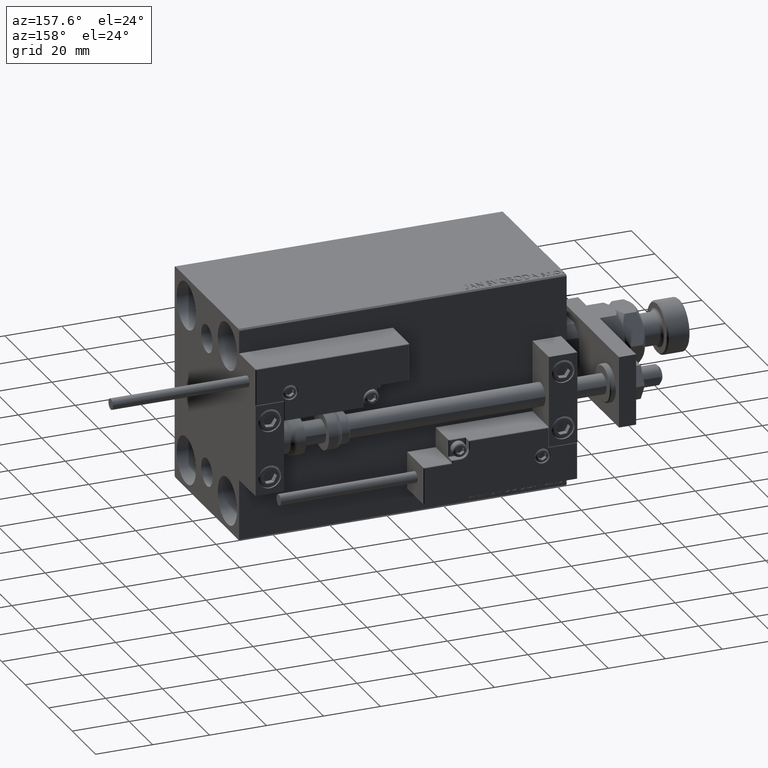
[diagram: clean part render]
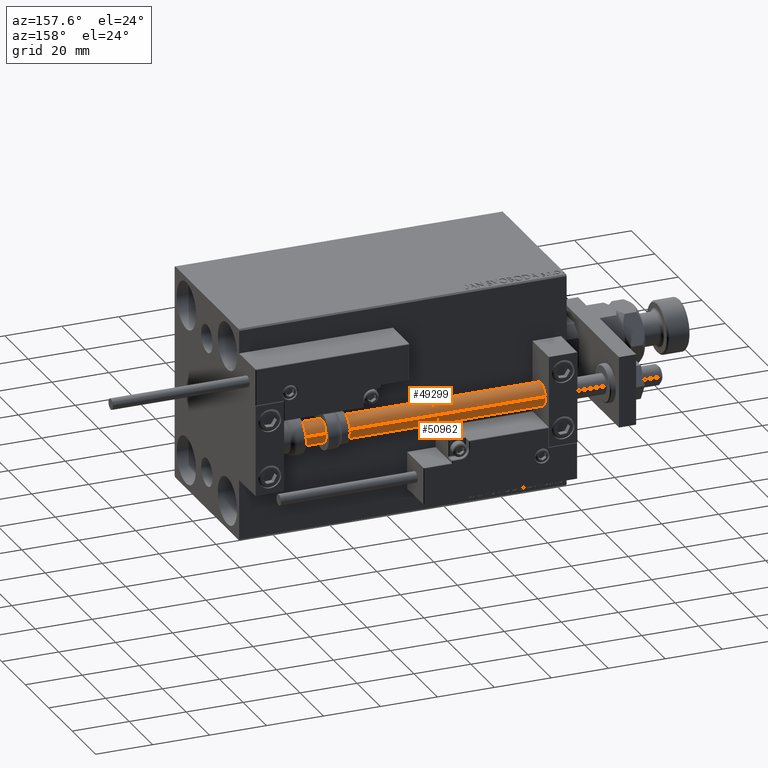
[diagram: same view with one multi-face feature highlighted, each face labeled with its STEP entity id]
A machine part, auxiliary view. The highlighted faces form ONE feature: a constant-radius fillet chain: 2 tangent blend faces with common blend radius 4 mm. The faces share edges in the B-rep.
Their STEP definitions:
[1] entity #49299 (Cylinder):
#466 = VERTEX_POINT ( 'NONE', #50105 ) ;
#532 = CARTESIAN_POINT ( 'NONE',  ( 4.000000000000000000, 4.898587196589412829E-16, 115.0000000000000000 ) ) ;
#597 = DIRECTION ( 'NONE',  ( 1.000000000000000000, 0.000000000000000000, 0.000000000000000000 ) ) ;
#1025 = CARTESIAN_POINT ( 'NONE',  ( 0.000000000000000000, 0.000000000000000000, 2.000000000000029310 ) ) ;
#1105 = ORIENTED_EDGE ( 'NONE', *, *, #41262, .T. ) ;
#4342 = LINE ( 'NONE', #32978, #35490 ) ;
#4816 = AXIS2_PLACEMENT_3D ( 'NONE', #10010, #10266, #34232 ) ;
#6224 = VECTOR ( 'NONE', #32700, 1000.000000000000000 ) ;
#8113 = EDGE_CURVE ( 'NONE', #18830, #466, #17327, .T. ) ;
#8159 = CARTESIAN_POINT ( 'NONE',  ( 0.000000000000000000, 0.000000000000000000, 115.0000000000000000 ) ) ;
#10010 = CARTESIAN_POINT ( 'NONE',  ( 0.000000000000000000, 0.000000000000000000, 115.0000000000000000 ) ) ;
#10266 = DIRECTION ( 'NONE',  ( -0.000000000000000000, -0.000000000000000000, -1.000000000000000000 ) ) ;
#10830 = DIRECTION ( 'NONE',  ( 0.000000000000000000, 0.000000000000000000, 1.000000000000000000 ) ) ;
#12235 = EDGE_CURVE ( 'NONE', #28623, #466, #25543, .T. ) ;
#17327 = LINE ( 'NONE', #45719, #6224 ) ;
#18830 = VERTEX_POINT ( 'NONE', #25990 ) ;
#20001 = DIRECTION ( 'NONE',  ( -0.000000000000000000, -0.000000000000000000, -1.000000000000000000 ) ) ;
#20874 = ORIENTED_EDGE ( 'NONE', *, *, #8113, .F. ) ;
#20936 = ORIENTED_EDGE ( 'NONE', *, *, #48259, .F. ) ;
#21354 = DIRECTION ( 'NONE',  ( -0.000000000000000000, -0.000000000000000000, 1.000000000000000000 ) ) ;
#23054 = AXIS2_PLACEMENT_3D ( 'NONE', #1025, #21354, #48473 ) ;
#23914 = CIRCLE ( 'NONE', #47246, 4.000000000000000000 ) ;
#25543 = CIRCLE ( 'NONE', #23054, 4.000000000000000000 ) ;
#25853 = EDGE_LOOP ( 'NONE', ( #20936, #1105, #29746, #20874 ) ) ;
#25990 = CARTESIAN_POINT ( 'NONE',  ( -4.000000000000000000, 0.000000000000000000, 115.0000000000000000 ) ) ;
#28623 = VERTEX_POINT ( 'NONE', #50041 ) ;
#29746 = ORIENTED_EDGE ( 'NONE', *, *, #12235, .T. ) ;
#32700 = DIRECTION ( 'NONE',  ( -0.000000000000000000, -0.000000000000000000, -1.000000000000000000 ) ) ;
#32978 = CARTESIAN_POINT ( 'NONE',  ( 4.000000000000000000, 4.898587196589412829E-16, 115.0000000000000000 ) ) ;
#34232 = DIRECTION ( 'NONE',  ( -1.000000000000000000, 0.000000000000000000, 0.000000000000000000 ) ) ;
#35490 = VECTOR ( 'NONE', #20001, 1000.000000000000000 ) ;
#41262 = EDGE_CURVE ( 'NONE', #48558, #28623, #4342, .T. ) ;
#41808 = CYLINDRICAL_SURFACE ( 'NONE', #4816, 4.000000000000000000 ) ;
#45719 = CARTESIAN_POINT ( 'NONE',  ( -4.000000000000000000, 0.000000000000000000, 115.0000000000000000 ) ) ;
#47246 = AXIS2_PLACEMENT_3D ( 'NONE', #8159, #10830, #597 ) ;
#48259 = EDGE_CURVE ( 'NONE', #48558, #18830, #23914, .T. ) ;
#48473 = DIRECTION ( 'NONE',  ( 1.000000000000000000, 0.000000000000000000, 0.000000000000000000 ) ) ;
#48558 = VERTEX_POINT ( 'NONE', #532 ) ;
#49299 = ADVANCED_FACE ( 'NONE', ( #49903 ), #41808, .T. ) ;
#49903 = FACE_OUTER_BOUND ( 'NONE', #25853, .T. ) ;
#50041 = CARTESIAN_POINT ( 'NONE',  ( 4.000000000000000000, 4.898587196589412829E-16, 2.000000000000029310 ) ) ;
#50105 = CARTESIAN_POINT ( 'NONE',  ( -4.000000000000000000, 0.000000000000000000, 2.000000000000029310 ) ) ;
[2] entity #50962 (Cylinder):
#466 = VERTEX_POINT ( 'NONE', #50105 ) ;
#532 = CARTESIAN_POINT ( 'NONE',  ( 4.000000000000000000, 4.898587196589412829E-16, 115.0000000000000000 ) ) ;
#3261 = FACE_OUTER_BOUND ( 'NONE', #33734, .T. ) ;
#4342 = LINE ( 'NONE', #32978, #35490 ) ;
#6224 = VECTOR ( 'NONE', #32700, 1000.000000000000000 ) ;
#8113 = EDGE_CURVE ( 'NONE', #18830, #466, #17327, .T. ) ;
#17327 = LINE ( 'NONE', #45719, #6224 ) ;
#18830 = VERTEX_POINT ( 'NONE', #25990 ) ;
#19159 = DIRECTION ( 'NONE',  ( -0.000000000000000000, -0.000000000000000000, -1.000000000000000000 ) ) ;
#19753 = AXIS2_PLACEMENT_3D ( 'NONE', #34139, #25572, #33375 ) ;
#20001 = DIRECTION ( 'NONE',  ( -0.000000000000000000, -0.000000000000000000, -1.000000000000000000 ) ) ;
#21287 = CARTESIAN_POINT ( 'NONE',  ( 0.000000000000000000, 0.000000000000000000, 2.000000000000029310 ) ) ;
#21772 = CIRCLE ( 'NONE', #36770, 4.000000000000000000 ) ;
#25572 = DIRECTION ( 'NONE',  ( 0.000000000000000000, 0.000000000000000000, 1.000000000000000000 ) ) ;
#25990 = CARTESIAN_POINT ( 'NONE',  ( -4.000000000000000000, 0.000000000000000000, 115.0000000000000000 ) ) ;
#26995 = EDGE_CURVE ( 'NONE', #466, #28623, #21772, .T. ) ;
#27362 = AXIS2_PLACEMENT_3D ( 'NONE', #47046, #19159, #42348 ) ;
#27800 = ORIENTED_EDGE ( 'NONE', *, *, #26995, .T. ) ;
#28623 = VERTEX_POINT ( 'NONE', #50041 ) ;
#31288 = ORIENTED_EDGE ( 'NONE', *, *, #47332, .F. ) ;
#31654 = CYLINDRICAL_SURFACE ( 'NONE', #27362, 4.000000000000000000 ) ;
#32700 = DIRECTION ( 'NONE',  ( -0.000000000000000000, -0.000000000000000000, -1.000000000000000000 ) ) ;
#32978 = CARTESIAN_POINT ( 'NONE',  ( 4.000000000000000000, 4.898587196589412829E-16, 115.0000000000000000 ) ) ;
#33375 = DIRECTION ( 'NONE',  ( 1.000000000000000000, 0.000000000000000000, 0.000000000000000000 ) ) ;
#33734 = EDGE_LOOP ( 'NONE', ( #39482, #31288, #48978, #27800 ) ) ;
#34139 = CARTESIAN_POINT ( 'NONE',  ( 0.000000000000000000, 0.000000000000000000, 115.0000000000000000 ) ) ;
#35490 = VECTOR ( 'NONE', #20001, 1000.000000000000000 ) ;
#36770 = AXIS2_PLACEMENT_3D ( 'NONE', #21287, #37172, #38198 ) ;
#37172 = DIRECTION ( 'NONE',  ( -0.000000000000000000, -0.000000000000000000, 1.000000000000000000 ) ) ;
#38198 = DIRECTION ( 'NONE',  ( 1.000000000000000000, 0.000000000000000000, 0.000000000000000000 ) ) ;
#39482 = ORIENTED_EDGE ( 'NONE', *, *, #41262, .F. ) ;
#41262 = EDGE_CURVE ( 'NONE', #48558, #28623, #4342, .T. ) ;
#42348 = DIRECTION ( 'NONE',  ( -1.000000000000000000, 0.000000000000000000, 0.000000000000000000 ) ) ;
#43028 = CIRCLE ( 'NONE', #19753, 4.000000000000000000 ) ;
#45719 = CARTESIAN_POINT ( 'NONE',  ( -4.000000000000000000, 0.000000000000000000, 115.0000000000000000 ) ) ;
#47046 = CARTESIAN_POINT ( 'NONE',  ( 0.000000000000000000, 0.000000000000000000, 115.0000000000000000 ) ) ;
#47332 = EDGE_CURVE ( 'NONE', #18830, #48558, #43028, .T. ) ;
#48558 = VERTEX_POINT ( 'NONE', #532 ) ;
#48978 = ORIENTED_EDGE ( 'NONE', *, *, #8113, .T. ) ;
#50041 = CARTESIAN_POINT ( 'NONE',  ( 4.000000000000000000, 4.898587196589412829E-16, 2.000000000000029310 ) ) ;
#50105 = CARTESIAN_POINT ( 'NONE',  ( -4.000000000000000000, 0.000000000000000000, 2.000000000000029310 ) ) ;
#50962 = ADVANCED_FACE ( 'NONE', ( #3261 ), #31654, .T. ) ;